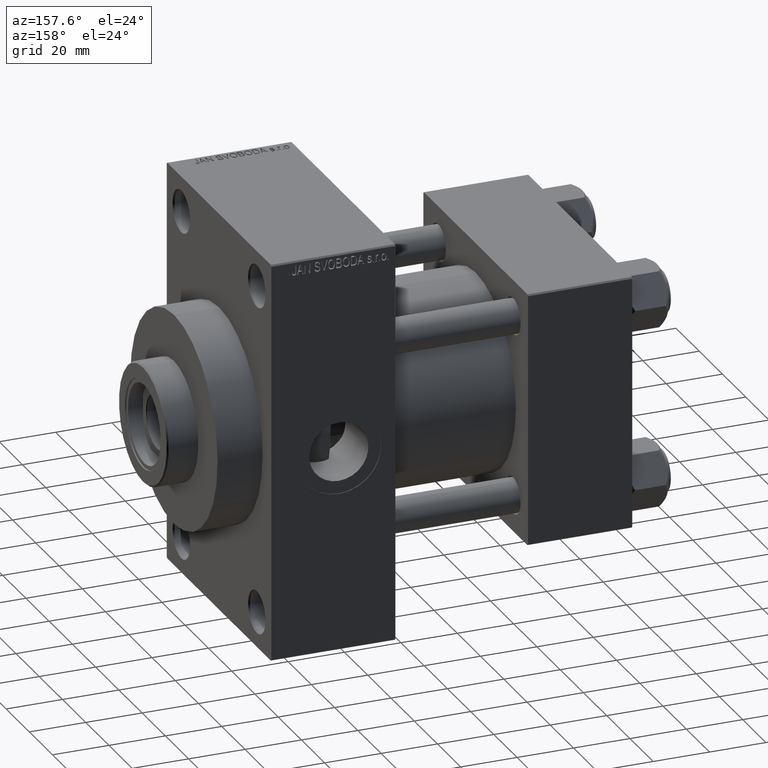
[diagram: clean part render]
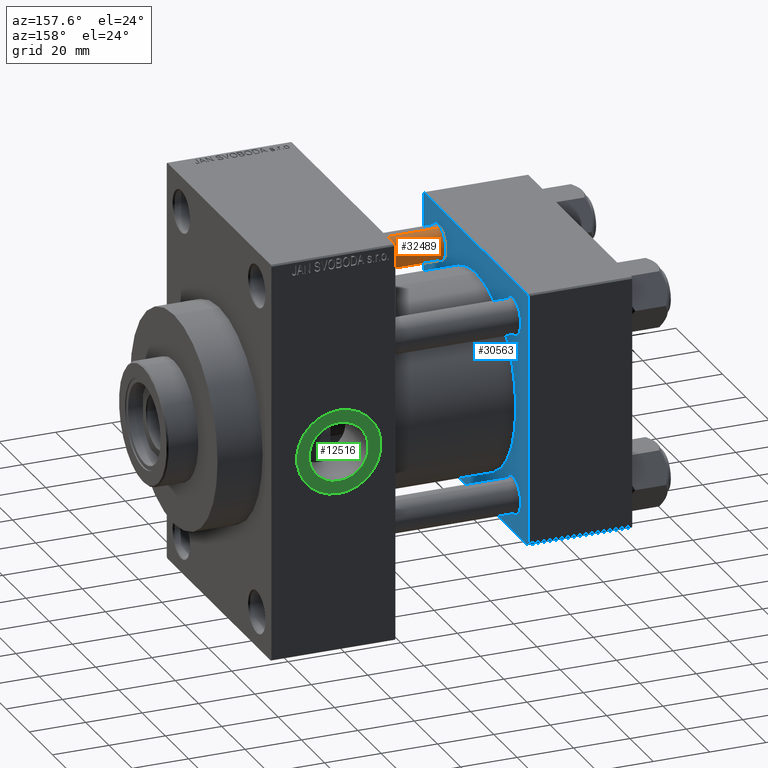
[diagram: same view with three faces highlighted in distinct colors, each labeled with its STEP entity id]
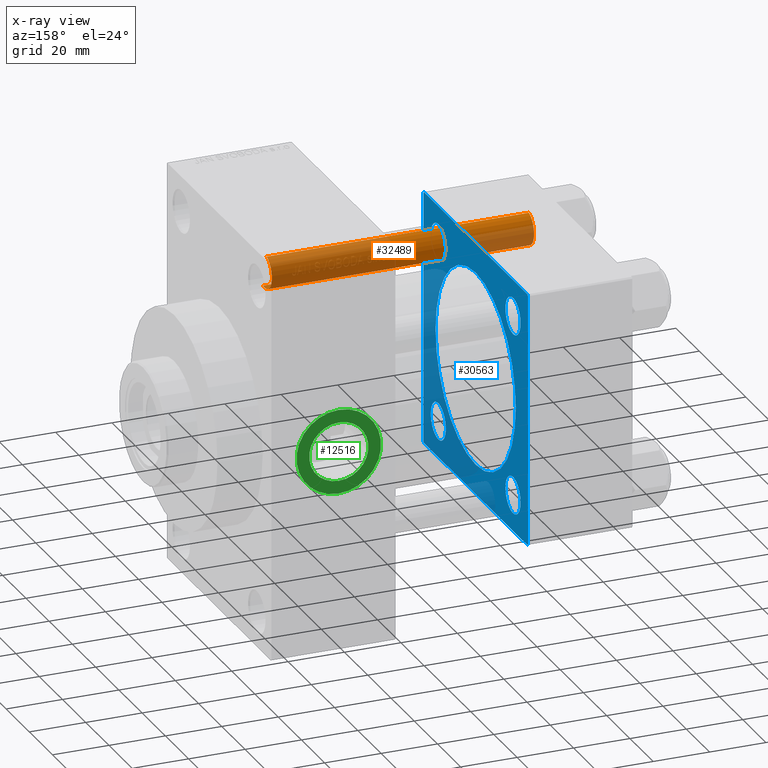
[diagram: x-ray of the same camera — body ghosted, the three highlighted faces saturated]
A machine part, auxiliary view with three faces highlighted in distinct colors.
The next image is the same camera in x-ray (body ghosted, the three faces saturated) — at least one of them is partly hidden behind the body in this view.
Their STEP definitions:

[orange] entity #32489 — the highlighted cylindrical surface (edge-blend (fillet) strip) has radius 6 mm, axis along (1, 0, 0).
#417 = CARTESIAN_POINT ( 'NONE',  ( 0.000000000000000000, 0.000000000000000000, 0.5000000000000281997 ) ) ;
#1318 = VERTEX_POINT ( 'NONE', #24980 ) ;
#1671 = LINE ( 'NONE', #26767, #32236 ) ;
#2215 = FACE_OUTER_BOUND ( 'NONE', #23160, .T. ) ;
#2685 = CYLINDRICAL_SURFACE ( 'NONE', #14039, 6.000000000000000888 ) ;
#5065 = ORIENTED_EDGE ( 'NONE', *, *, #38926, .T. ) ;
#5436 = VERTEX_POINT ( 'NONE', #11632 ) ;
#7767 = CIRCLE ( 'NONE', #23793, 6.000000000000000888 ) ;
#9525 = VERTEX_POINT ( 'NONE', #27098 ) ;
#11632 = CARTESIAN_POINT ( 'NONE',  ( 6.000000000000000888, 7.347880794884120722E-16, 93.49999999999998579 ) ) ;
#13655 = LINE ( 'NONE', #31325, #19332 ) ;
#14039 = AXIS2_PLACEMENT_3D ( 'NONE', #28239, #23705, #27529 ) ;
#14967 = ORIENTED_EDGE ( 'NONE', *, *, #23829, .T. ) ;
#14986 = DIRECTION ( 'NONE',  ( 1.000000000000000000, 0.000000000000000000, 0.000000000000000000 ) ) ;
#15304 = VERTEX_POINT ( 'NONE', #33783 ) ;
#18697 = ORIENTED_EDGE ( 'NONE', *, *, #39546, .T. ) ;
#19332 = VECTOR ( 'NONE', #27982, 1000.000000000000000 ) ;
#21587 = AXIS2_PLACEMENT_3D ( 'NONE', #29794, #46341, #46566 ) ;
#23160 = EDGE_LOOP ( 'NONE', ( #28270, #5065, #18697, #14967 ) ) ;
#23705 = DIRECTION ( 'NONE',  ( -0.000000000000000000, -0.000000000000000000, -1.000000000000000000 ) ) ;
#23793 = AXIS2_PLACEMENT_3D ( 'NONE', #417, #40764, #14986 ) ;
#23829 = EDGE_CURVE ( 'NONE', #9525, #1318, #7767, .T. ) ;
#24980 = CARTESIAN_POINT ( 'NONE',  ( 6.000000000000000888, 7.347880794884120722E-16, 0.5000000000000281997 ) ) ;
#26767 = CARTESIAN_POINT ( 'NONE',  ( 6.000000000000000888, 7.347880794884120722E-16, 94.00000000000000000 ) ) ;
#27098 = CARTESIAN_POINT ( 'NONE',  ( -6.000000000000000888, 0.000000000000000000, 0.5000000000000281997 ) ) ;
#27529 = DIRECTION ( 'NONE',  ( -1.000000000000000000, 0.000000000000000000, 0.000000000000000000 ) ) ;
#27982 = DIRECTION ( 'NONE',  ( -0.000000000000000000, -0.000000000000000000, -1.000000000000000000 ) ) ;
#28239 = CARTESIAN_POINT ( 'NONE',  ( 0.000000000000000000, 0.000000000000000000, 94.00000000000000000 ) ) ;
#28270 = ORIENTED_EDGE ( 'NONE', *, *, #29445, .F. ) ;
#29445 = EDGE_CURVE ( 'NONE', #5436, #1318, #1671, .T. ) ;
#29794 = CARTESIAN_POINT ( 'NONE',  ( 0.000000000000000000, 0.000000000000000000, 93.49999999999998579 ) ) ;
#31325 = CARTESIAN_POINT ( 'NONE',  ( -6.000000000000000888, 0.000000000000000000, 94.00000000000000000 ) ) ;
#32236 = VECTOR ( 'NONE', #37742, 1000.000000000000000 ) ;
#32489 = ADVANCED_FACE ( 'NONE', ( #2215 ), #2685, .T. ) ;
#33783 = CARTESIAN_POINT ( 'NONE',  ( -6.000000000000000888, 0.000000000000000000, 93.49999999999998579 ) ) ;
#36067 = CIRCLE ( 'NONE', #21587, 6.000000000000000888 ) ;
#37742 = DIRECTION ( 'NONE',  ( -0.000000000000000000, -0.000000000000000000, -1.000000000000000000 ) ) ;
#38926 = EDGE_CURVE ( 'NONE', #5436, #15304, #36067, .T. ) ;
#39546 = EDGE_CURVE ( 'NONE', #15304, #9525, #13655, .T. ) ;
#40764 = DIRECTION ( 'NONE',  ( -0.000000000000000000, -0.000000000000000000, 1.000000000000000000 ) ) ;
#46341 = DIRECTION ( 'NONE',  ( 0.000000000000000000, 0.000000000000000000, -1.000000000000000000 ) ) ;
#46566 = DIRECTION ( 'NONE',  ( 1.000000000000000000, 0.000000000000000000, 0.000000000000000000 ) ) ;

[blue] entity #30563 — the highlighted planar face has unit normal (-1, 0, 0).
#247 = VERTEX_POINT ( 'NONE', #25688 ) ;
#894 = CARTESIAN_POINT ( 'NONE',  ( 37.00000000000000000, 32.14999999999999147, 32.15000000000000568 ) ) ;
#1469 = AXIS2_PLACEMENT_3D ( 'NONE', #47138, #43559, #17542 ) ;
#1483 = EDGE_LOOP ( 'NONE', ( #43957, #39695 ) ) ;
#1501 = DIRECTION ( 'NONE',  ( 0.000000000000000000, -1.000000000000000000, -1.541976423090495387E-16 ) ) ;
#1712 = DIRECTION ( 'NONE',  ( -1.000000000000000000, 0.000000000000000000, -0.000000000000000000 ) ) ;
#3335 = CIRCLE ( 'NONE', #14019, 6.500000000000005329 ) ;
#3405 = AXIS2_PLACEMENT_3D ( 'NONE', #46633, #9647, #46409 ) ;
#3558 = EDGE_CURVE ( 'NONE', #43871, #15001, #44591, .T. ) ;
#3594 = VERTEX_POINT ( 'NONE', #16815 ) ;
#3960 = CARTESIAN_POINT ( 'NONE',  ( 37.00000000000000000, 32.14999999999999147, 38.65000000000001279 ) ) ;
#3979 = EDGE_CURVE ( 'NONE', #26862, #5753, #44629, .T. ) ;
#5204 = DIRECTION ( 'NONE',  ( -1.000000000000000000, 0.000000000000000000, -0.000000000000000000 ) ) ;
#5753 = VERTEX_POINT ( 'NONE', #35943 ) ;
#6053 = CARTESIAN_POINT ( 'NONE',  ( 37.00000000000000000, 44.49999999999998579, 45.00000000000001421 ) ) ;
#6779 = CARTESIAN_POINT ( 'NONE',  ( 37.00000000000000000, 1.622946243093158675E-15, -34.50000000000000000 ) ) ;
#6931 = VERTEX_POINT ( 'NONE', #6053 ) ;
#7414 = VERTEX_POINT ( 'NONE', #39879 ) ;
#7690 = CARTESIAN_POINT ( 'NONE',  ( 37.00000000000000000, 44.99999999999998579, -44.49999999999995737 ) ) ;
#7716 = DIRECTION ( 'NONE',  ( 0.000000000000000000, -1.000000000000000000, -1.541976423090495633E-16 ) ) ;
#8407 = FACE_BOUND ( 'NONE', #21120, .T. ) ;
#9073 = ORIENTED_EDGE ( 'NONE', *, *, #18535, .T. ) ;
#9086 = CARTESIAN_POINT ( 'NONE',  ( 37.00000000000000000, 44.49999999999998579, -44.99999999999998579 ) ) ;
#9647 = DIRECTION ( 'NONE',  ( -1.000000000000000000, 0.000000000000000000, -0.000000000000000000 ) ) ;
#10342 = EDGE_CURVE ( 'NONE', #3594, #41673, #31157, .T. ) ;
#10362 = AXIS2_PLACEMENT_3D ( 'NONE', #25499, #21690, #32913 ) ;
#12448 = CARTESIAN_POINT ( 'NONE',  ( 37.00000000000000000, -32.14999999999997726, 32.15000000000001279 ) ) ;
#12952 = FACE_BOUND ( 'NONE', #29000, .T. ) ;
#13103 = DIRECTION ( 'NONE',  ( -0.000000000000000000, -0.7071067811865425767, -0.7071067811865524577 ) ) ;
#13565 = DIRECTION ( 'NONE',  ( -0.000000000000000000, 0.7071067811865474617, 0.7071067811865474617 ) ) ;
#13623 = AXIS2_PLACEMENT_3D ( 'NONE', #20923, #25422, #39296 ) ;
#13685 = CARTESIAN_POINT ( 'NONE',  ( 37.00000000000000000, -2.602085213965210642E-15, 0.000000000000000000 ) ) ;
#13918 = EDGE_CURVE ( 'NONE', #247, #35502, #26542, .T. ) ;
#14019 = AXIS2_PLACEMENT_3D ( 'NONE', #894, #15459, #30035 ) ;
#15001 = VERTEX_POINT ( 'NONE', #44103 ) ;
#15114 = CIRCLE ( 'NONE', #13623, 6.499999999999950262 ) ;
#15408 = VECTOR ( 'NONE', #1501, 1000.000000000000000 ) ;
#15459 = DIRECTION ( 'NONE',  ( -1.000000000000000000, 0.000000000000000000, -0.000000000000000000 ) ) ;
#15967 = EDGE_CURVE ( 'NONE', #36843, #7414, #15114, .T. ) ;
#16527 = DIRECTION ( 'NONE',  ( 0.000000000000000000, 0.000000000000000000, 1.000000000000000000 ) ) ;
#16758 = DIRECTION ( 'NONE',  ( -0.000000000000000000, 0.000000000000000000, 1.000000000000000000 ) ) ;
#16815 = CARTESIAN_POINT ( 'NONE',  ( 37.00000000000000000, -45.00000000000000000, -44.49999999999995737 ) ) ;
#17372 = LINE ( 'NONE', #20960, #17874 ) ;
#17542 = DIRECTION ( 'NONE',  ( 0.000000000000000000, 0.000000000000000000, 1.000000000000000000 ) ) ;
#17590 = CARTESIAN_POINT ( 'NONE',  ( 37.00000000000000000, 44.49999999999998579, 45.00000000000001421 ) ) ;
#17662 = EDGE_CURVE ( 'NONE', #35502, #247, #42650, .T. ) ;
#17724 = ORIENTED_EDGE ( 'NONE', *, *, #36551, .T. ) ;
#17874 = VECTOR ( 'NONE', #13565, 1000.000000000000114 ) ;
#17895 = ORIENTED_EDGE ( 'NONE', *, *, #10342, .T. ) ;
#17972 = VECTOR ( 'NONE', #43473, 1000.000000000000000 ) ;
#18307 = CIRCLE ( 'NONE', #22128, 34.50000000000000000 ) ;
#18535 = EDGE_CURVE ( 'NONE', #35975, #19571, #38084, .T. ) ;
#18575 = ORIENTED_EDGE ( 'NONE', *, *, #22506, .F. ) ;
#18826 = VERTEX_POINT ( 'NONE', #7690 ) ;
#19045 = ORIENTED_EDGE ( 'NONE', *, *, #3558, .T. ) ;
#19146 = DIRECTION ( 'NONE',  ( 0.000000000000000000, 0.000000000000000000, 1.000000000000000000 ) ) ;
#19488 = CARTESIAN_POINT ( 'NONE',  ( 37.00000000000000000, -32.14999999999997726, -38.64999999999996305 ) ) ;
#19571 = VERTEX_POINT ( 'NONE', #3960 ) ;
#19639 = FACE_BOUND ( 'NONE', #42874, .T. ) ;
#19936 = EDGE_CURVE ( 'NONE', #5753, #26862, #18307, .T. ) ;
#20106 = DIRECTION ( 'NONE',  ( 1.000000000000000000, -0.000000000000000000, 0.000000000000000000 ) ) ;
#20353 = FACE_BOUND ( 'NONE', #24798, .T. ) ;
#20391 = CARTESIAN_POINT ( 'NONE',  ( 37.00000000000000000, 32.14999999999999147, -25.64999999999999858 ) ) ;
#20466 = ORIENTED_EDGE ( 'NONE', *, *, #13918, .T. ) ;
#20608 = CARTESIAN_POINT ( 'NONE',  ( 37.00000000000000000, -44.49999999999995737, -45.00000000000000000 ) ) ;
#20923 = CARTESIAN_POINT ( 'NONE',  ( 37.00000000000000000, -32.14999999999997726, -32.15000000000001279 ) ) ;
#20960 = CARTESIAN_POINT ( 'NONE',  ( 37.00000000000000000, 44.99999999999998579, -44.49999999999998579 ) ) ;
#21030 = LINE ( 'NONE', #42520, #35922 ) ;
#21120 = EDGE_LOOP ( 'NONE', ( #19045, #30494 ) ) ;
#21690 = DIRECTION ( 'NONE',  ( -1.000000000000000000, 0.000000000000000000, -0.000000000000000000 ) ) ;
#21983 = EDGE_CURVE ( 'NONE', #15001, #43871, #25207, .T. ) ;
#22128 = AXIS2_PLACEMENT_3D ( 'NONE', #13685, #42573, #23949 ) ;
#22330 = DIRECTION ( 'NONE',  ( 0.000000000000000000, 0.000000000000000000, 1.000000000000000000 ) ) ;
#22506 = EDGE_CURVE ( 'NONE', #41364, #18826, #21030, .T. ) ;
#22543 = LINE ( 'NONE', #29707, #36779 ) ;
#22781 = EDGE_CURVE ( 'NONE', #41507, #38143, #28131, .T. ) ;
#22955 = AXIS2_PLACEMENT_3D ( 'NONE', #12448, #41114, #19146 ) ;
#23833 = DIRECTION ( 'NONE',  ( 0.000000000000000000, 0.000000000000000000, 1.000000000000000000 ) ) ;
#23919 = FACE_BOUND ( 'NONE', #1483, .T. ) ;
#23937 = CARTESIAN_POINT ( 'NONE',  ( 37.00000000000000000, 44.99999999999998579, 45.00000000000001421 ) ) ;
#23949 = DIRECTION ( 'NONE',  ( 0.000000000000000000, 0.000000000000000000, 1.000000000000000000 ) ) ;
#24599 = ORIENTED_EDGE ( 'NONE', *, *, #40353, .T. ) ;
#24788 = AXIS2_PLACEMENT_3D ( 'NONE', #38249, #20106, #16527 ) ;
#24798 = EDGE_LOOP ( 'NONE', ( #20466, #43235 ) ) ;
#25061 = DIRECTION ( 'NONE',  ( 0.000000000000000000, 0.000000000000000000, -1.000000000000000000 ) ) ;
#25176 = CARTESIAN_POINT ( 'NONE',  ( 37.00000000000000000, 32.14999999999999147, 32.15000000000000568 ) ) ;
#25207 = CIRCLE ( 'NONE', #22955, 6.499999999999950262 ) ;
#25422 = DIRECTION ( 'NONE',  ( -1.000000000000000000, 0.000000000000000000, -0.000000000000000000 ) ) ;
#25499 = CARTESIAN_POINT ( 'NONE',  ( 37.00000000000000000, -32.14999999999997726, -32.15000000000001279 ) ) ;
#25688 = CARTESIAN_POINT ( 'NONE',  ( 37.00000000000000000, 32.14999999999999147, -38.65000000000001279 ) ) ;
#25803 = CARTESIAN_POINT ( 'NONE',  ( 37.00000000000000000, -45.00000000000000711, 45.00000000000000000 ) ) ;
#26542 = CIRCLE ( 'NONE', #35666, 6.500000000000005329 ) ;
#26862 = VERTEX_POINT ( 'NONE', #6779 ) ;
#27061 = LINE ( 'NONE', #23937, #15408 ) ;
#28131 = LINE ( 'NONE', #35071, #39728 ) ;
#28371 = ORIENTED_EDGE ( 'NONE', *, *, #34246, .T. ) ;
#28982 = EDGE_CURVE ( 'NONE', #37036, #41673, #22543, .T. ) ;
#29000 = EDGE_LOOP ( 'NONE', ( #9073, #24599 ) ) ;
#29052 = EDGE_CURVE ( 'NONE', #6931, #41507, #27061, .T. ) ;
#29707 = CARTESIAN_POINT ( 'NONE',  ( 37.00000000000000000, 44.99999999999998579, -44.99999999999998579 ) ) ;
#30035 = DIRECTION ( 'NONE',  ( 0.000000000000000000, 0.000000000000000000, 1.000000000000000000 ) ) ;
#30394 = FACE_OUTER_BOUND ( 'NONE', #40308, .T. ) ;
#30494 = ORIENTED_EDGE ( 'NONE', *, *, #21983, .T. ) ;
#30563 = ADVANCED_FACE ( 'NONE', ( #19639, #20353, #8407, #12952, #23919, #30394 ), #44945, .F. ) ;
#30761 = CARTESIAN_POINT ( 'NONE',  ( 37.00000000000000000, 32.14999999999999147, -32.15000000000000568 ) ) ;
#30885 = CARTESIAN_POINT ( 'NONE',  ( 37.00000000000000000, -44.49999999999995737, 45.00000000000000000 ) ) ;
#30977 = CIRCLE ( 'NONE', #10362, 6.499999999999950262 ) ;
#31157 = LINE ( 'NONE', #34044, #31882 ) ;
#31762 = ORIENTED_EDGE ( 'NONE', *, *, #28982, .F. ) ;
#31882 = VECTOR ( 'NONE', #41903, 1000.000000000000114 ) ;
#31935 = LINE ( 'NONE', #17590, #40029 ) ;
#32499 = LINE ( 'NONE', #25803, #17972 ) ;
#32689 = CARTESIAN_POINT ( 'NONE',  ( 37.00000000000000000, -45.00000000000000711, 44.49999999999997158 ) ) ;
#32913 = DIRECTION ( 'NONE',  ( 0.000000000000000000, 0.000000000000000000, 1.000000000000000000 ) ) ;
#33303 = CARTESIAN_POINT ( 'NONE',  ( 37.00000000000000000, 44.99999999999998579, 44.50000000000001421 ) ) ;
#33732 = ORIENTED_EDGE ( 'NONE', *, *, #29052, .T. ) ;
#34044 = CARTESIAN_POINT ( 'NONE',  ( 37.00000000000000000, -44.49999999999998579, -45.00000000000000000 ) ) ;
#34246 = EDGE_CURVE ( 'NONE', #37036, #18826, #17372, .T. ) ;
#35060 = DIRECTION ( 'NONE',  ( 0.000000000000000000, -0.7071067811865474617, 0.7071067811865474617 ) ) ;
#35071 = CARTESIAN_POINT ( 'NONE',  ( 37.00000000000000000, -45.00000000000000711, 44.49999999999997158 ) ) ;
#35502 = VERTEX_POINT ( 'NONE', #20391 ) ;
#35666 = AXIS2_PLACEMENT_3D ( 'NONE', #30761, #5204, #23833 ) ;
#35922 = VECTOR ( 'NONE', #25061, 1000.000000000000000 ) ;
#35943 = CARTESIAN_POINT ( 'NONE',  ( 37.00000000000000000, -2.602085213965210642E-15, 34.50000000000000000 ) ) ;
#35957 = ORIENTED_EDGE ( 'NONE', *, *, #22781, .T. ) ;
#35975 = VERTEX_POINT ( 'NONE', #45675 ) ;
#36551 = EDGE_CURVE ( 'NONE', #41364, #6931, #31935, .T. ) ;
#36779 = VECTOR ( 'NONE', #7716, 1000.000000000000000 ) ;
#36843 = VERTEX_POINT ( 'NONE', #19488 ) ;
#37036 = VERTEX_POINT ( 'NONE', #9086 ) ;
#38084 = CIRCLE ( 'NONE', #39602, 6.500000000000005329 ) ;
#38143 = VERTEX_POINT ( 'NONE', #32689 ) ;
#38249 = CARTESIAN_POINT ( 'NONE',  ( 37.00000000000000000, -2.602085213965210642E-15, 0.000000000000000000 ) ) ;
#38338 = AXIS2_PLACEMENT_3D ( 'NONE', #38490, #1712, #16758 ) ;
#38490 = CARTESIAN_POINT ( 'NONE',  ( 37.00000000000000000, 0.000000000000000000, 0.000000000000000000 ) ) ;
#39296 = DIRECTION ( 'NONE',  ( 0.000000000000000000, 0.000000000000000000, 1.000000000000000000 ) ) ;
#39602 = AXIS2_PLACEMENT_3D ( 'NONE', #25176, #43567, #22330 ) ;
#39695 = ORIENTED_EDGE ( 'NONE', *, *, #3979, .F. ) ;
#39728 = VECTOR ( 'NONE', #13103, 1000.000000000000114 ) ;
#39879 = CARTESIAN_POINT ( 'NONE',  ( 37.00000000000000000, -32.14999999999997726, -25.65000000000006253 ) ) ;
#40029 = VECTOR ( 'NONE', #35060, 1000.000000000000114 ) ;
#40308 = EDGE_LOOP ( 'NONE', ( #31762, #28371, #18575, #17724, #33732, #35957, #45360, #17895 ) ) ;
#40353 = EDGE_CURVE ( 'NONE', #19571, #35975, #3335, .T. ) ;
#41114 = DIRECTION ( 'NONE',  ( -1.000000000000000000, 0.000000000000000000, -0.000000000000000000 ) ) ;
#41364 = VERTEX_POINT ( 'NONE', #33303 ) ;
#41507 = VERTEX_POINT ( 'NONE', #30885 ) ;
#41673 = VERTEX_POINT ( 'NONE', #20608 ) ;
#41880 = ORIENTED_EDGE ( 'NONE', *, *, #45101, .T. ) ;
#41903 = DIRECTION ( 'NONE',  ( 0.000000000000000000, 0.7071067811865474617, -0.7071067811865474617 ) ) ;
#42001 = CARTESIAN_POINT ( 'NONE',  ( 37.00000000000000000, -32.14999999999997726, 25.65000000000006253 ) ) ;
#42520 = CARTESIAN_POINT ( 'NONE',  ( 37.00000000000000000, 44.99999999999998579, 45.00000000000001421 ) ) ;
#42573 = DIRECTION ( 'NONE',  ( 1.000000000000000000, -0.000000000000000000, 0.000000000000000000 ) ) ;
#42650 = CIRCLE ( 'NONE', #1469, 6.500000000000005329 ) ;
#42874 = EDGE_LOOP ( 'NONE', ( #46070, #41880 ) ) ;
#43235 = ORIENTED_EDGE ( 'NONE', *, *, #17662, .T. ) ;
#43473 = DIRECTION ( 'NONE',  ( 0.000000000000000000, 7.709882115452476934E-17, -1.000000000000000000 ) ) ;
#43559 = DIRECTION ( 'NONE',  ( -1.000000000000000000, 0.000000000000000000, -0.000000000000000000 ) ) ;
#43567 = DIRECTION ( 'NONE',  ( -1.000000000000000000, 0.000000000000000000, -0.000000000000000000 ) ) ;
#43871 = VERTEX_POINT ( 'NONE', #42001 ) ;
#43957 = ORIENTED_EDGE ( 'NONE', *, *, #19936, .F. ) ;
#44103 = CARTESIAN_POINT ( 'NONE',  ( 37.00000000000000000, -32.14999999999997726, 38.64999999999996305 ) ) ;
#44591 = CIRCLE ( 'NONE', #3405, 6.499999999999950262 ) ;
#44629 = CIRCLE ( 'NONE', #24788, 34.50000000000000000 ) ;
#44844 = EDGE_CURVE ( 'NONE', #38143, #3594, #32499, .T. ) ;
#44945 = PLANE ( 'NONE',  #38338 ) ;
#45101 = EDGE_CURVE ( 'NONE', #7414, #36843, #30977, .T. ) ;
#45360 = ORIENTED_EDGE ( 'NONE', *, *, #44844, .T. ) ;
#45675 = CARTESIAN_POINT ( 'NONE',  ( 37.00000000000000000, 32.14999999999999147, 25.64999999999999858 ) ) ;
#46070 = ORIENTED_EDGE ( 'NONE', *, *, #15967, .T. ) ;
#46409 = DIRECTION ( 'NONE',  ( 0.000000000000000000, 0.000000000000000000, 1.000000000000000000 ) ) ;
#46633 = CARTESIAN_POINT ( 'NONE',  ( 37.00000000000000000, -32.14999999999997726, 32.15000000000001279 ) ) ;
#47138 = CARTESIAN_POINT ( 'NONE',  ( 37.00000000000000000, 32.14999999999999147, -32.15000000000000568 ) ) ;

[green] entity #12516 — the highlighted planar face has unit normal (0, 1, 0).
#1287 = DIRECTION ( 'NONE',  ( 0.000000000000000000, 0.000000000000000000, 1.000000000000000000 ) ) ;
#6694 = ORIENTED_EDGE ( 'NONE', *, *, #38545, .T. ) ;
#7122 = DIRECTION ( 'NONE',  ( 0.000000000000000000, -0.000000000000000000, 1.000000000000000000 ) ) ;
#8118 = DIRECTION ( 'NONE',  ( 0.000000000000000000, 0.000000000000000000, 1.000000000000000000 ) ) ;
#8204 = CARTESIAN_POINT ( 'NONE',  ( 104.0000000000000000, 44.80000000000001137, -2.198945251238207943E-15 ) ) ;
#8252 = AXIS2_PLACEMENT_3D ( 'NONE', #10950, #32212, #7122 ) ;
#8453 = DIRECTION ( 'NONE',  ( 0.000000000000000000, 0.000000000000000000, 1.000000000000000000 ) ) ;
#10950 = CARTESIAN_POINT ( 'NONE',  ( 104.0000000000000000, 44.80000000000001137, -2.198945251238207943E-15 ) ) ;
#11054 = VERTEX_POINT ( 'NONE', #20238 ) ;
#12450 = AXIS2_PLACEMENT_3D ( 'NONE', #15631, #44758, #8453 ) ;
#12516 = ADVANCED_FACE ( 'NONE', ( #39841, #14544 ), #21015, .T. ) ;
#12742 = AXIS2_PLACEMENT_3D ( 'NONE', #35652, #13219, #39224 ) ;
#13094 = EDGE_LOOP ( 'NONE', ( #23897, #32003 ) ) ;
#13219 = DIRECTION ( 'NONE',  ( 0.000000000000000000, 1.000000000000000000, 0.000000000000000000 ) ) ;
#13755 = VERTEX_POINT ( 'NONE', #37636 ) ;
#14411 = VERTEX_POINT ( 'NONE', #38108 ) ;
#14544 = FACE_OUTER_BOUND ( 'NONE', #32915, .T. ) ;
#14720 = AXIS2_PLACEMENT_3D ( 'NONE', #40842, #29861, #8118 ) ;
#15631 = CARTESIAN_POINT ( 'NONE',  ( 104.0000000000000000, 44.80000000000001137, -2.198945251238207943E-15 ) ) ;
#18333 = ORIENTED_EDGE ( 'NONE', *, *, #19897, .T. ) ;
#19342 = VERTEX_POINT ( 'NONE', #29021 ) ;
#19897 = EDGE_CURVE ( 'NONE', #13755, #14411, #35828, .T. ) ;
#20238 = CARTESIAN_POINT ( 'NONE',  ( 104.0000000000000000, 44.80000000000001847, -10.48000000000000220 ) ) ;
#21015 = PLANE ( 'NONE',  #8252 ) ;
#23897 = ORIENTED_EDGE ( 'NONE', *, *, #30774, .F. ) ;
#27222 = CIRCLE ( 'NONE', #12742, 10.48000000000000043 ) ;
#29021 = CARTESIAN_POINT ( 'NONE',  ( 104.0000000000000000, 44.80000000000001847, 10.47999999999999865 ) ) ;
#29861 = DIRECTION ( 'NONE',  ( 0.000000000000000000, 1.000000000000000000, 0.000000000000000000 ) ) ;
#30774 = EDGE_CURVE ( 'NONE', #19342, #11054, #33036, .T. ) ;
#32003 = ORIENTED_EDGE ( 'NONE', *, *, #37898, .F. ) ;
#32212 = DIRECTION ( 'NONE',  ( 0.000000000000000000, 1.000000000000000000, 0.000000000000000000 ) ) ;
#32915 = EDGE_LOOP ( 'NONE', ( #18333, #6694 ) ) ;
#33036 = CIRCLE ( 'NONE', #14720, 10.48000000000000043 ) ;
#35091 = AXIS2_PLACEMENT_3D ( 'NONE', #8204, #45203, #1287 ) ;
#35652 = CARTESIAN_POINT ( 'NONE',  ( 104.0000000000000000, 44.80000000000001847, -2.198945251238207943E-15 ) ) ;
#35828 = CIRCLE ( 'NONE', #35091, 15.00000000000000000 ) ;
#37636 = CARTESIAN_POINT ( 'NONE',  ( 104.0000000000000000, 44.80000000000001137, 14.99999999999999822 ) ) ;
#37898 = EDGE_CURVE ( 'NONE', #11054, #19342, #27222, .T. ) ;
#38108 = CARTESIAN_POINT ( 'NONE',  ( 104.0000000000000000, 44.80000000000001137, -15.00000000000000178 ) ) ;
#38545 = EDGE_CURVE ( 'NONE', #14411, #13755, #41430, .T. ) ;
#39224 = DIRECTION ( 'NONE',  ( 0.000000000000000000, 0.000000000000000000, 1.000000000000000000 ) ) ;
#39841 = FACE_BOUND ( 'NONE', #13094, .T. ) ;
#40842 = CARTESIAN_POINT ( 'NONE',  ( 104.0000000000000000, 44.80000000000001847, -2.198945251238207943E-15 ) ) ;
#41430 = CIRCLE ( 'NONE', #12450, 15.00000000000000000 ) ;
#44758 = DIRECTION ( 'NONE',  ( 0.000000000000000000, 1.000000000000000000, 0.000000000000000000 ) ) ;
#45203 = DIRECTION ( 'NONE',  ( 0.000000000000000000, 1.000000000000000000, 0.000000000000000000 ) ) ;